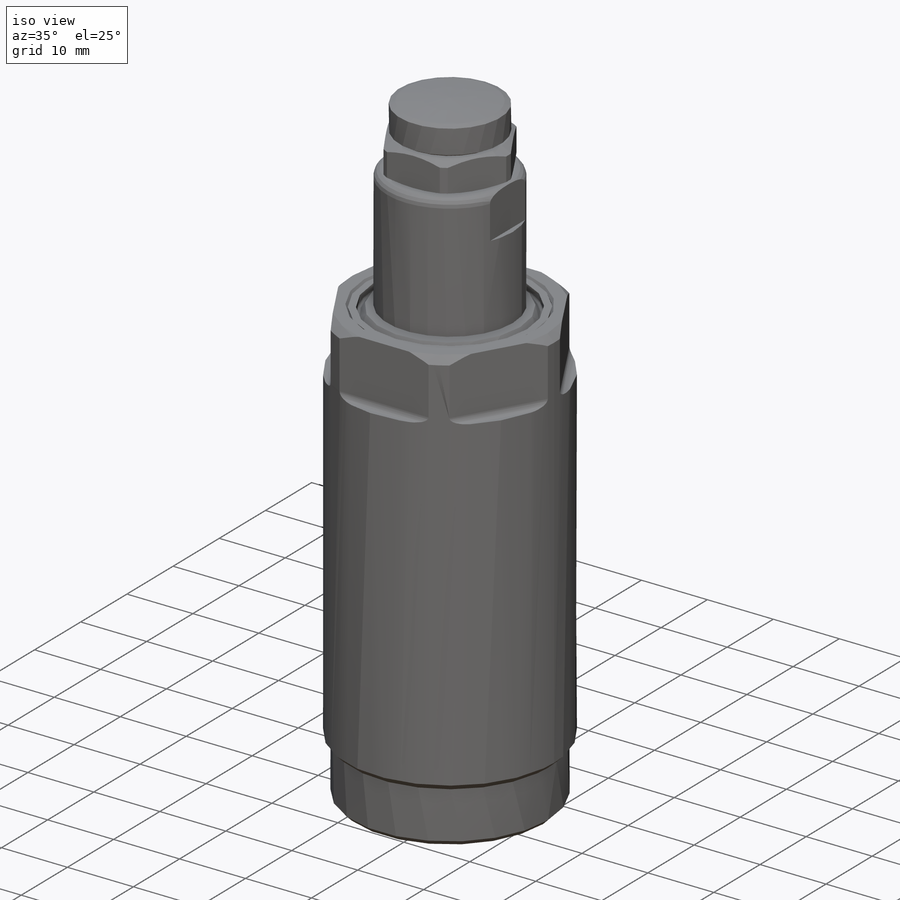
[diagram: iso view]
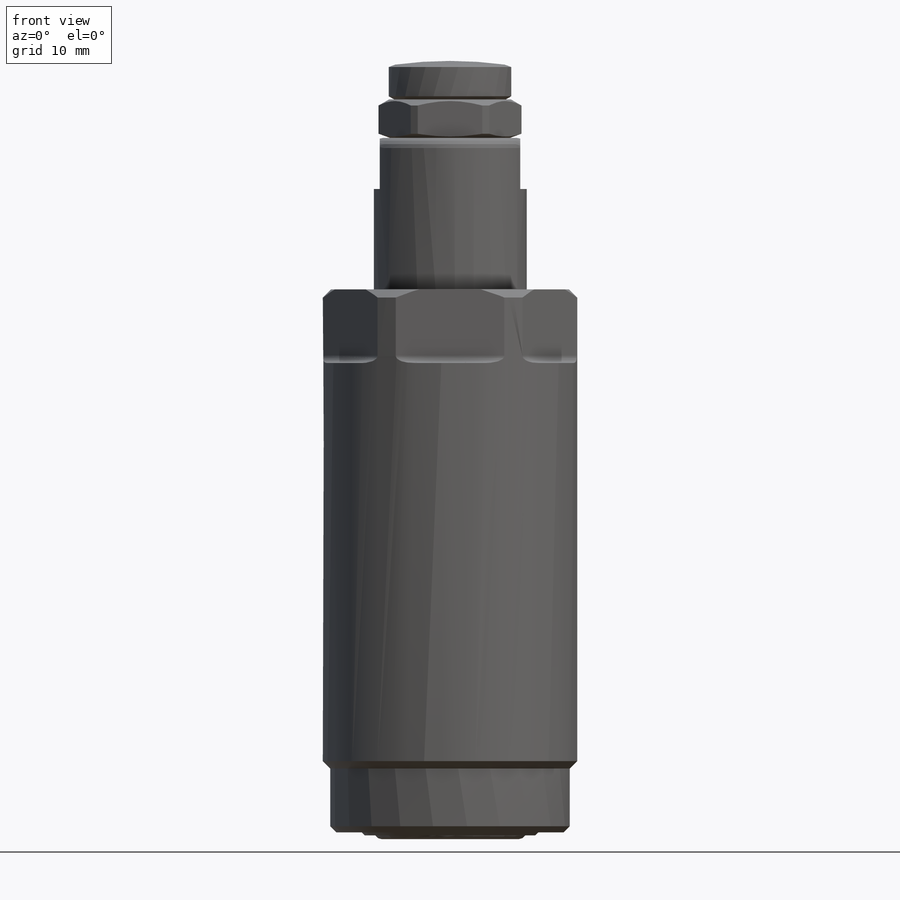
[diagram: front view]
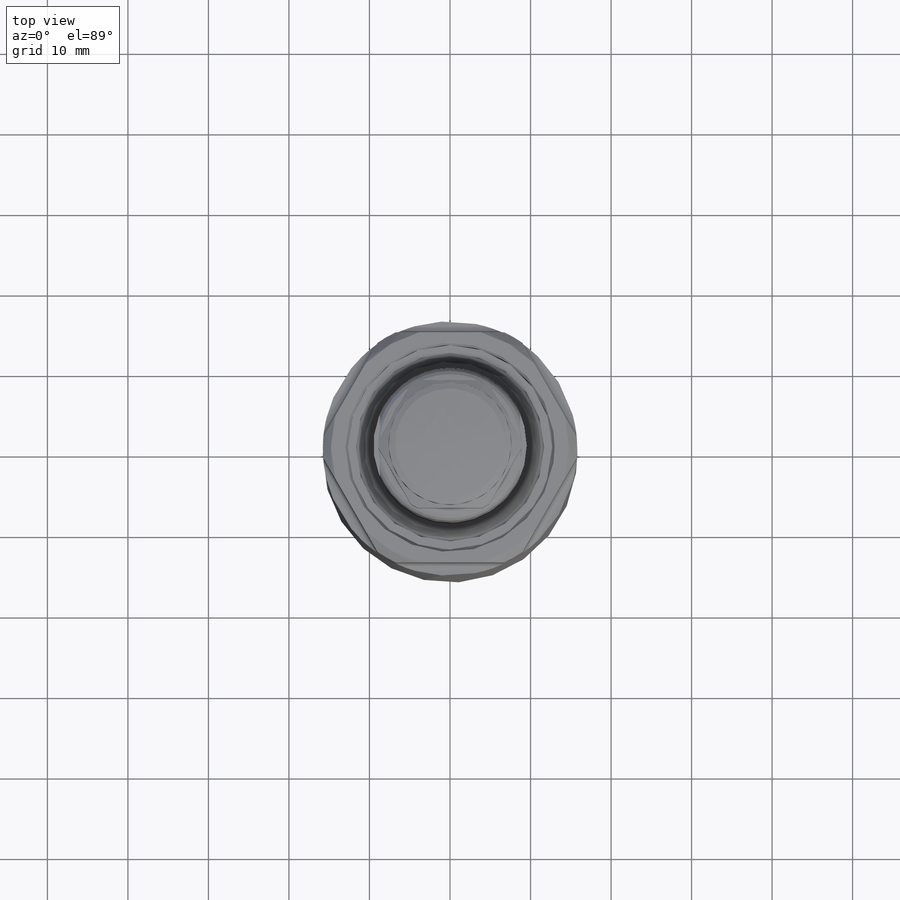
[diagram: top view]
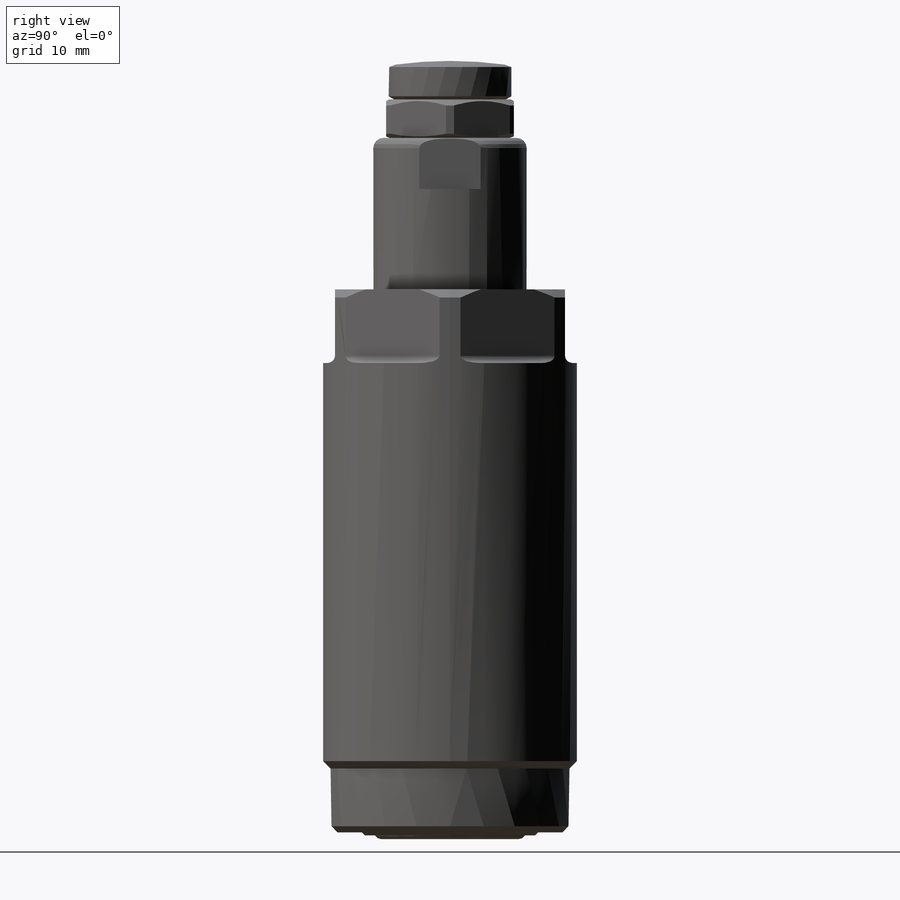
[diagram: right view]
SOLIDWORKS PART (.sldprt)
format: sldprt  version: not decoded by parser v0  size: 474,112 bytes
history: native  units: mm
features: sketch x9, revolve x4, cut_extrude x3, material x1, fillet x1, hole x1, thread x1 (+11 scaffold rows collapsed)
feature tree (31):
  scaffold x11  (default folders/planes/origin — collapsed)
  material  "Alloy Steel"
  sketch  "Sketch1"  dims[c1.D10=1.778mm c1.D21=0.508mm c1.D5=~90.802318mm c1.D26=~0.814283mm c2.D10=1.778mm c2.D1=25.146mm c2.D2=67.818mm c2.D3=~1.392436mm c3.D3=45.0deg c3.D4=~0.81663mm c4.D4=45.0deg c4.D5=~0.493551mm c5.D5=45.0deg c5.D6=8.3058mm c5.D7=3.81mm c5.D8=1.3208mm c5.D9=4.7752mm c5.D11=15.875mm c5.D12=17.4752mm c5.D13=23.3426mm c5.D14=0.381mm c5.D15=0.762mm c6.D5=4.9784mm c7.D5=45.0deg c8.D5=25.146mm c8.D16=~1.051559mm c9.D16=45.0deg c9.D17=1.016mm c9.D18=~0.251991mm c10.D18=60.0deg c10.D19=0.508mm c10.D20=1.016mm c10.D22=~1.223555mm c11.D22=30.0deg c11.D23=0.889mm c11.D24=0.2794mm c11.D5=31.5976mm c11.D9=4.7752mm c11.D11=18.923mm c11.D12=21.1836mm c11.D13=29.7434mm c11.D25=25.4mm]
  revolve  "Revolve1"  Angle=360deg
  sketch  "Sketch2"  dims[D1=28.575mm]
  cut_extrude  "Cut-Extrude1"  Depth=9.144mm
  fillet  "Fillet1"  Radius=0.9144mm
  sketch  "Sketch3"  dims[D3=1.27mm D1=19.05mm D2=18.8214mm]
  revolve  "Revolve2"  Angle=360deg
  sketch  "Sketch4"  dims[c1.D1=~6.322647mm c1.D2=~2.070736mm c2.D1=~3.161323mm c2.D2=~8.420992mm c3.D1=~6.322647mm c3.D2=~1.982995mm c4.D1=17.4625mm c4.D2=6.35mm]
  cut_extrude  "Cut-Extrude2"  Depth=22.225mm
  hole  "7/16-14 Tapped Hole1"  Diameter=9.3472mm Depth=6.35mm
  sketch  "Sketch6"
  sketch  "Sketch5"  dims[hole-wizard template sketch: 47 standard entries collapsed; hole parameters kept: c15.Tap Drill Depth=6.35mm c15.D3=~14.816244mm c15.Drill Angle=180.0deg]
  thread  "Hole Thread1"  Diameter=6.35mm  [1 undecoded]
  sketch  "Sketch7"  dims[c1.D1=~1.097666mm c1.D2=~7.438728mm c2.D1=17.78mm c2.D2=3.556mm c2.D3=~0.757947mm c3.D3=30.0deg c3.D4=7.1501mm c4.D4=20.0deg c4.D5=12.7mm c4.D2=15.875mm c4.D6=4.7752mm c5.D2=0.508mm c5.D5=0.762mm]
  revolve  "Revolve3"  Angle=360deg
  sketch  "Sketch8"  dims[D1=15.875mm D2=~14.664697mm]
  cut_extrude  "Cut-Extrude3"  Depth=4.7752mm
  sketch  "Sketch9"  dims[c1.D3=50.8mm c1.D1=15.24mm c1.D2=4.7752mm c1.D4=~0.742602mm c2.D4=70.0deg c2.D5=0.4572mm c2.D6=~0.584131mm c3.D6=30.0deg c3.D7=0.381mm]
  revolve  "Revolve4"  Angle=360deg
decode coverage: 18 of 19 modeling features carry decoded parameters
note: ~ marks probable driven/reference dimensions
note: 1 parameter value undecoded
note: suppression state not decoded; provenance and decode notes live in map.json
